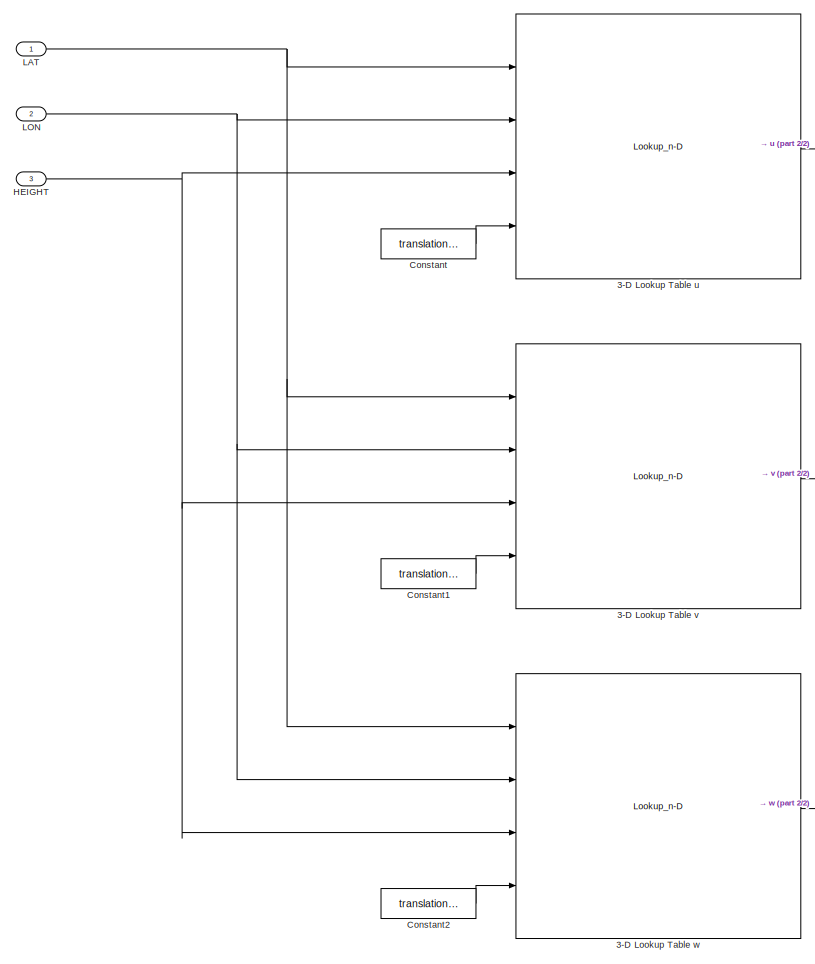
[diagram: root canvas - part 1/2, left side, full height]
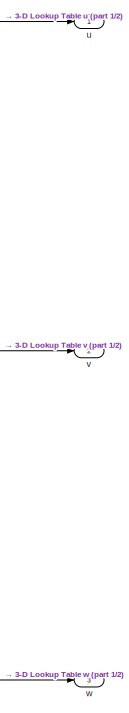
[diagram: root canvas - part 2/2, middle right region]
MODEL slx_2d1fb4463214
KIND model
BLOCK [Lookup_n-D] 3-D Lookup Table u
  BreakpointsForDimension1 = [trans_lat_start, trans_lat_start+1E-08, trans_lat_end-1E-08, trans_lat_end]
  BreakpointsForDimension2 = [trans_lon_start, trans_lon_start+1E-08, trans_lon_end-1E-08, trans_lon_end]
  BreakpointsForDimension3 = [trans_height_start, trans_height_start+1E-08, trans_height_end-1E-08, trans_height_end]
  ExtrapMethod = Clip
  InputPortMap = u0,u1,u2,p221
  InternalRulePriority = Speed
  NumberOfTableDimensions = 3
  Ports = [4, 1]
  RndMeth = Simplest
  Table = reshape(repmat([4 5 6;16 19 20;10 18 23],1,2),[3,3,2])
  TableSource = Input port
BLOCK [Lookup_n-D] 3-D Lookup Table v
  BreakpointsForDimension1 = [trans_lat_start, trans_lat_start+1E-08, trans_lat_end-1E-08, trans_lat_end]
  BreakpointsForDimension2 = [trans_lon_start, trans_lon_start+1E-08, trans_lon_end-1E-08, trans_lon_end]
  BreakpointsForDimension3 = [trans_height_start, trans_height_start+1E-08, trans_height_end-1E-08, trans_height_end]
  ExtrapMethod = Clip
  InputPortMap = u0,u1,u2,p221
  InternalRulePriority = Speed
  NumberOfTableDimensions = 3
  Ports = [4, 1]
  RndMeth = Simplest
  Table = reshape(repmat([4 5 6;16 19 20;10 18 23],1,2),[3,3,2])
  TableSource = Input port
BLOCK [Lookup_n-D] 3-D Lookup Table w
  BreakpointsForDimension1 = [trans_lat_start, trans_lat_start+1E-08, trans_lat_end-1E-08, trans_lat_end]
  BreakpointsForDimension2 = [trans_lon_start, trans_lon_start+1E-08, trans_lon_end-1E-08, trans_lon_end]
  BreakpointsForDimension3 = [trans_height_start, trans_height_start+1E-08, trans_height_end-1E-08, trans_height_end]
  ExtrapMethod = Clip
  InputPortMap = u0,u1,u2,p221
  InternalRulePriority = Speed
  NumberOfTableDimensions = 3
  Ports = [4, 1]
  RndMeth = Simplest
  Table = reshape(repmat([4 5 6;16 19 20;10 18 23],1,2),[3,3,2])
  TableSource = Input port
BLOCK [Constant] Constant
  Value = translationalWind.u
BLOCK [Constant] Constant1
  Value = translationalWind.v
BLOCK [Constant] Constant2
  Value = translationalWind.w
BLOCK [Inport] HEIGHT
  Port = 3
BLOCK [Inport] LAT
BLOCK [Inport] LON
  Port = 2
BLOCK [Outport] u
BLOCK [Outport] v
  Port = 2
BLOCK [Outport] w
  Port = 3
LINE 3-D Lookup Table u:1 -> u:1
LINE 3-D Lookup Table v:1 -> v:1
LINE 3-D Lookup Table w:1 -> w:1
LINE Constant1:1 -> 3-D Lookup Table v:4
LINE Constant2:1 -> 3-D Lookup Table w:4
LINE Constant:1 -> 3-D Lookup Table u:4
NET HEIGHT:1 -> 3-D Lookup Table u:3, 3-D Lookup Table v:3, 3-D Lookup Table w:3
NET LAT:1 -> 3-D Lookup Table u:1, 3-D Lookup Table v:1, 3-D Lookup Table w:1
NET LON:1 -> 3-D Lookup Table u:2, 3-D Lookup Table v:2, 3-D Lookup Table w:2
note: NET lines group one-source signal fan-out (src -> all destinations, sorted); 1:1 wires keep LINE
